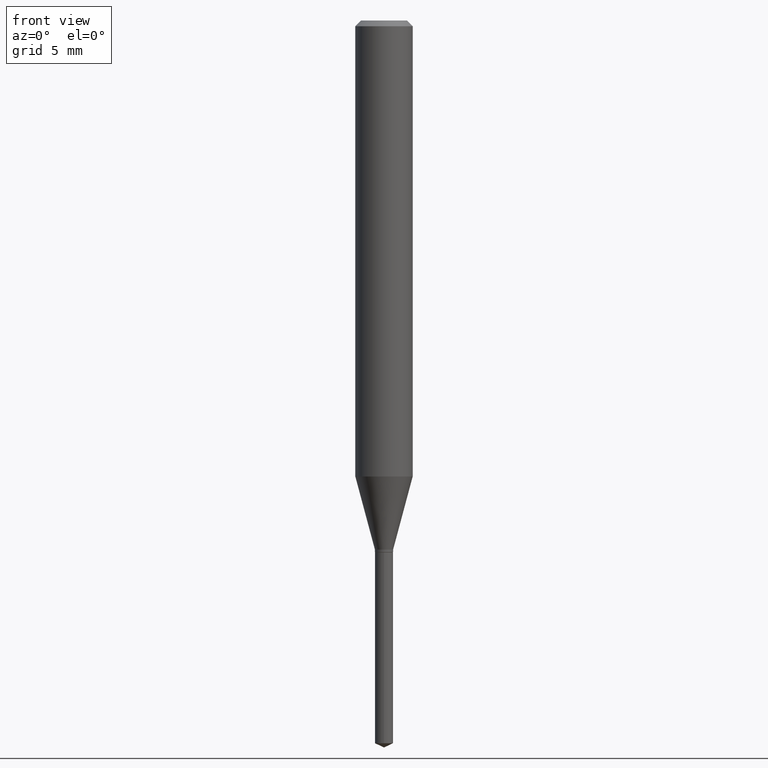
[diagram: clean part render]
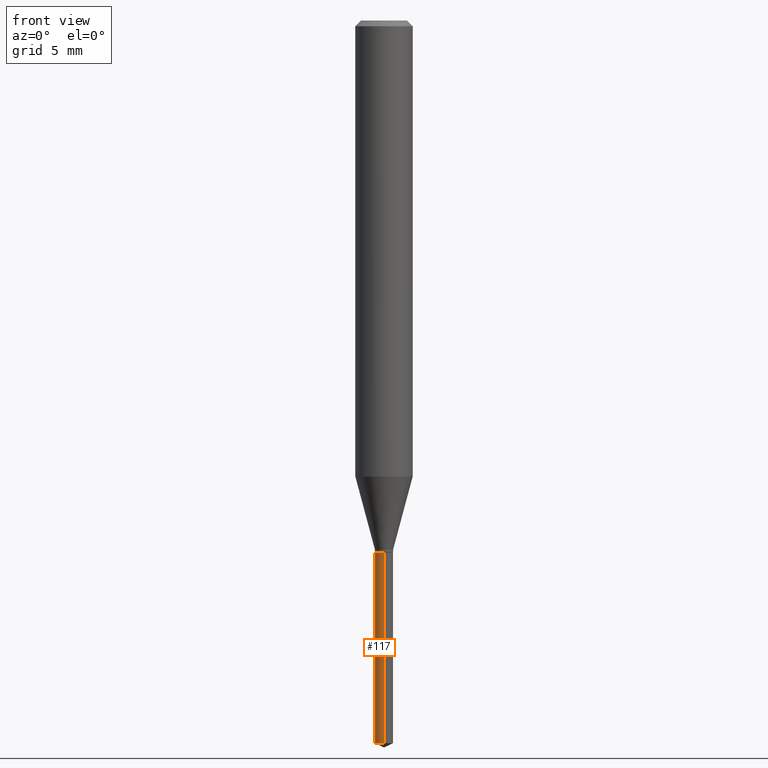
[diagram: same view with one face highlighted and labeled with its STEP entity id]
A machine part, front view. The second image highlights one B-rep face of the part: STEP entity #117.
In plain terms, the highlighted cylindrical surface (edge-blend (fillet) strip) has radius 0.475 mm, axis along (-0, 0, 1).
Its self-contained STEP definition (entity closure, byte-faithful):
#6 = CARTESIAN_POINT ( 'NONE',  ( -1.305814020727064035E-16, -0.01870000000000382467, -1.094499999999999806 ) ) ;
#11 = VERTEX_POINT ( 'NONE', #477 ) ;
#13 = AXIS2_PLACEMENT_3D ( 'NONE', #75, #320, #474 ) ;
#15 = ORIENTED_EDGE ( 'NONE', *, *, #152, .T. ) ;
#57 = VERTEX_POINT ( 'NONE', #108 ) ;
#65 = VERTEX_POINT ( 'NONE', #77 ) ;
#69 = VERTEX_POINT ( 'NONE', #410 ) ;
#75 = CARTESIAN_POINT ( 'NONE',  ( 3.637342060700270399E-29, -5.193158884747879625E-15, -1.487380046792501576 ) ) ;
#76 = EDGE_CURVE ( 'NONE', #11, #65, #360, .T. ) ;
#77 = CARTESIAN_POINT ( 'NONE',  ( -1.305814020726967892E-16, -0.01870000000000519164, -1.487380046792501576 ) ) ;
#102 = CYLINDRICAL_SURFACE ( 'NONE', #424, 0.01870000000000000134 ) ;
#108 = CARTESIAN_POINT ( 'NONE',  ( 1.328714915871751552E-16, 0.01869999999999617801, -1.094499999999999806 ) ) ;
#117 = ADVANCED_FACE ( 'NONE', ( #438 ), #102, .T. ) ;
#137 = ORIENTED_EDGE ( 'NONE', *, *, #149, .F. ) ;
#149 = EDGE_CURVE ( 'NONE', #57, #69, #312, .T. ) ;
#150 = DIRECTION ( 'NONE',  ( -2.445470214571802396E-29, 3.491479321953280158E-15, 1.000000000000000000 ) ) ;
#152 = EDGE_CURVE ( 'NONE', #65, #69, #453, .T. ) ;
#153 = DIRECTION ( 'NONE',  ( -6.982962677686265922E-15, -1.000000000000000000, 0.000000000000000000 ) ) ;
#156 = CARTESIAN_POINT ( 'NONE',  ( 2.676565608369631794E-29, -3.821426325363822773E-15, -1.094499999999999806 ) ) ;
#158 = DIRECTION ( 'NONE',  ( -2.445470214571802396E-29, 3.491479321953280158E-15, 1.000000000000000000 ) ) ;
#164 = VECTOR ( 'NONE', #150, 39.37007874015748143 ) ;
#189 = ORIENTED_EDGE ( 'NONE', *, *, #398, .F. ) ;
#226 = DIRECTION ( 'NONE',  ( -2.445470214571802116E-29, 3.491479321953280158E-15, 1.000000000000000000 ) ) ;
#245 = CARTESIAN_POINT ( 'NONE',  ( 2.676565608369631794E-29, -3.821426325363822773E-15, -1.094499999999999806 ) ) ;
#255 = AXIS2_PLACEMENT_3D ( 'NONE', #156, #226, #153 ) ;
#303 = LINE ( 'NONE', #386, #389 ) ;
#312 = CIRCLE ( 'NONE', #255, 0.01870000000000000134 ) ;
#320 = DIRECTION ( 'NONE',  ( -2.445470214571802116E-29, 3.491479321953280158E-15, 1.000000000000000000 ) ) ;
#321 = EDGE_LOOP ( 'NONE', ( #189, #475, #15, #137 ) ) ;
#330 = DIRECTION ( 'NONE',  ( -2.445470214571802116E-29, 3.491479321953280158E-15, 1.000000000000000000 ) ) ;
#360 = CIRCLE ( 'NONE', #13, 0.01870000000000000134 ) ;
#386 = CARTESIAN_POINT ( 'NONE',  ( 1.328714915871654916E-16, 0.01869999999999617801, -1.094499999999999806 ) ) ;
#389 = VECTOR ( 'NONE', #158, 39.37007874015748143 ) ;
#398 = EDGE_CURVE ( 'NONE', #11, #57, #303, .T. ) ;
#410 = CARTESIAN_POINT ( 'NONE',  ( -1.305814020727064035E-16, -0.01870000000000382467, -1.094499999999999806 ) ) ;
#424 = AXIS2_PLACEMENT_3D ( 'NONE', #245, #330, #482 ) ;
#438 = FACE_OUTER_BOUND ( 'NONE', #321, .T. ) ;
#453 = LINE ( 'NONE', #6, #164 ) ;
#474 = DIRECTION ( 'NONE',  ( -6.982962677686265922E-15, -1.000000000000000000, 0.000000000000000000 ) ) ;
#475 = ORIENTED_EDGE ( 'NONE', *, *, #76, .T. ) ;
#477 = CARTESIAN_POINT ( 'NONE',  ( 1.328714915871750812E-16, 0.01869999999999480758, -1.487380046792501576 ) ) ;
#482 = DIRECTION ( 'NONE',  ( -6.982962677686265922E-15, -1.000000000000000000, 0.000000000000000000 ) ) ;